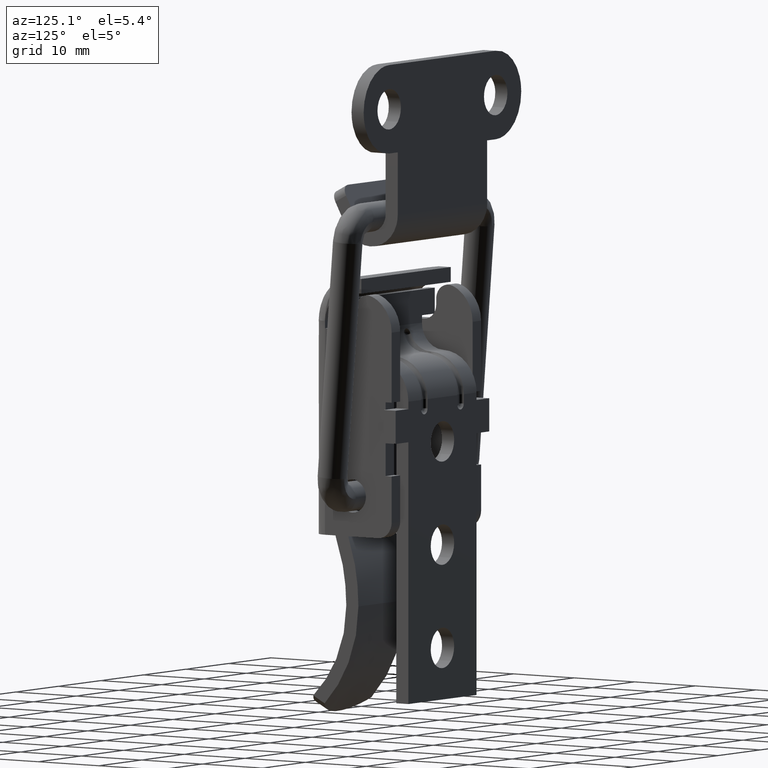
[diagram: clean part render]
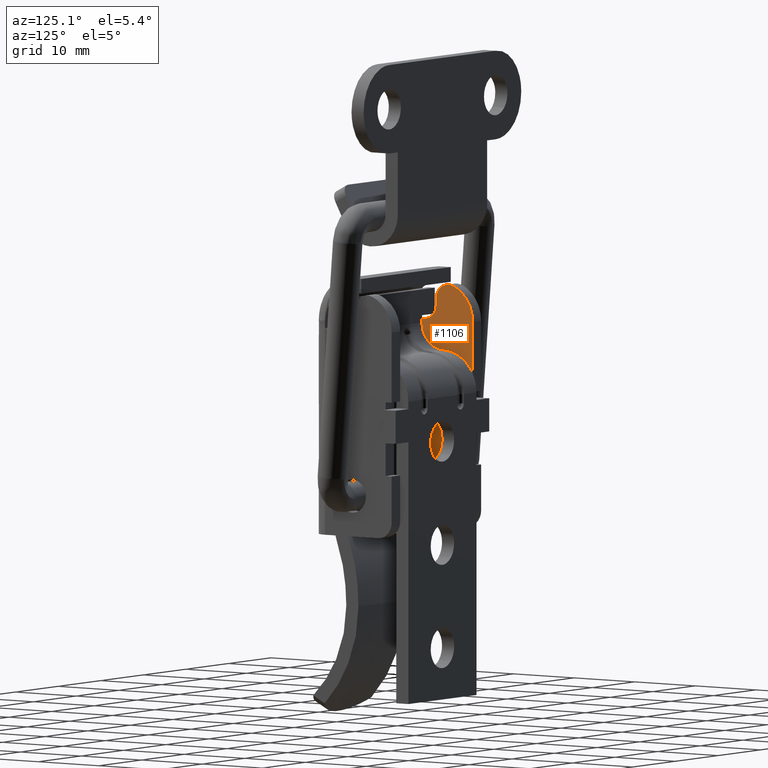
[diagram: same view with one face highlighted and labeled with its STEP entity id]
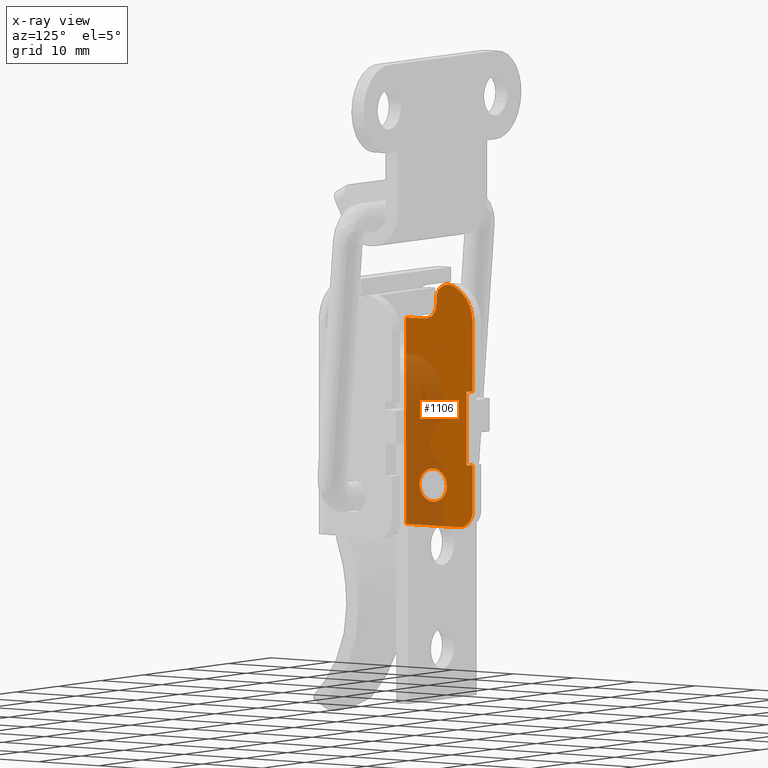
[diagram: x-ray of the same camera — body ghosted, the highlighted face saturated]
A machine part, auxiliary view. The second image highlights one B-rep face of the part: STEP entity #1106.
The next image is the same camera in x-ray: the body ghosted, the highlighted face saturated — about 36% of this face is hidden behind the body in this view.
In plain terms, the highlighted face is a freeform B-spline surface patch.
Its self-contained STEP definition (entity closure, byte-faithful):
#273=CARTESIAN_POINT('',(-8.500000000000000,0.0,2.250000000000000));
#274=VERTEX_POINT('',#273);
#275=CARTESIAN_POINT('',(-8.500000000011486,-1.612464491836882,1.569221721724918));
#276=VERTEX_POINT('',#275);
#277=CARTESIAN_POINT('',(-8.500000000000000,0.0,2.250000000000000));
#278=CARTESIAN_POINT('',(-8.500000000001199,-0.168530742970352,2.250012785977738));
#279=CARTESIAN_POINT('',(-8.500000000004008,-0.561810524420025,2.205694830792735));
#280=CARTESIAN_POINT('',(-8.500000000008020,-1.125771545482476,1.984002632662515));
#281=CARTESIAN_POINT('',(-8.500000000010466,-1.468837856950000,1.716881195124922));
#282=CARTESIAN_POINT('',(-8.500000000011486,-1.612464491836882,1.569221721724918));
#283=B_SPLINE_CURVE_WITH_KNOTS('',3,(#277,#278,#279,#280,#281,#282),.UNSPECIFIED.,.F.,.U.,(4,1,1,4),(0.000000014728166,0.505623028054706,1.179786753748042,1.797770626451644),.UNSPECIFIED.);
#284=EDGE_CURVE('',#274,#276,#283,.T.);
#344=CARTESIAN_POINT('',(-8.499999999995415,-1.658874303429257,-1.520078120054214));
#345=VERTEX_POINT('',#344);
#351=CARTESIAN_POINT('',(-8.500000000000000,0.0,-2.250000000000000));
#352=VERTEX_POINT('',#351);
#353=CARTESIAN_POINT('',(-8.499999999995415,-1.658874303429257,-1.520078120054214));
#354=CARTESIAN_POINT('',(-8.499999999995938,-1.462165498403645,-1.735222418705578));
#355=CARTESIAN_POINT('',(-8.499999999996998,-1.095221152361994,-2.004779563521480));
#356=CARTESIAN_POINT('',(-8.499999999998584,-0.505169069200119,-2.211284513505244));
#357=CARTESIAN_POINT('',(-8.499999999999519,-0.174876825502243,-2.250037285144152));
#358=CARTESIAN_POINT('',(-8.500000000000000,0.0,-2.250000000000000));
#359=B_SPLINE_CURVE_WITH_KNOTS('',3,(#353,#354,#355,#356,#357,#358),.UNSPECIFIED.,.F.,.U.,(4,1,1,4),(0.000000017815174,0.874394007066234,1.340736821353172,1.865373010030307),.UNSPECIFIED.);
#360=EDGE_CURVE('',#345,#352,#359,.T.);
#362=CARTESIAN_POINT('',(-8.500000000000000,2.249999999999630,0.000001289926931));
#363=VERTEX_POINT('',#362);
#364=CARTESIAN_POINT('',(-8.500000000000000,0.0,-2.250000000000000));
#365=CARTESIAN_POINT('',(-8.499999999999991,0.239320203715827,-2.250146372489394));
#366=CARTESIAN_POINT('',(-8.500000000000000,0.625785825574232,-2.187706349734474));
#367=CARTESIAN_POINT('',(-8.500000000000002,1.133082131296364,-1.962824331043440));
#368=CARTESIAN_POINT('',(-8.500000000000002,1.568419537428669,-1.648240248701334));
#369=CARTESIAN_POINT('',(-8.499999999999998,1.910752711810750,-1.231122239259737));
#370=CARTESIAN_POINT('',(-8.500000000000018,2.179603252565151,-0.662565674991767));
#371=CARTESIAN_POINT('',(-8.500000000000004,2.250200112503102,-0.257734897939028));
#372=CARTESIAN_POINT('',(-8.500000000000000,2.249999999999630,0.000001289926931));
#373=B_SPLINE_CURVE_WITH_KNOTS('',3,(#364,#365,#366,#367,#368,#369,#370,#371,#372),.UNSPECIFIED.,.F.,.U.,(4,1,1,1,1,1,4),(0.000000032367034,0.717915841835764,1.159724997902156,1.656742123114734,2.319427080565058,2.761239903347428,3.534381151795157),.UNSPECIFIED.);
#374=EDGE_CURVE('',#352,#363,#373,.T.);
#376=CARTESIAN_POINT('',(-8.500000000000000,2.249999999999630,0.000001289926931));
#377=CARTESIAN_POINT('',(-8.499999999999989,2.250011175382164,0.147254500591559));
#378=CARTESIAN_POINT('',(-8.500000000000021,2.215588763106982,0.497020912905061));
#379=CARTESIAN_POINT('',(-8.499999999999982,2.052441248964263,0.971266930876319));
#380=CARTESIAN_POINT('',(-8.500000000000011,1.755559616170968,1.440114618568769));
#381=CARTESIAN_POINT('',(-8.500000000000002,1.396588770611406,1.790361888739570));
#382=CARTESIAN_POINT('',(-8.500000000000004,0.936476293283055,2.066128536312633));
#383=CARTESIAN_POINT('',(-8.499999999999996,0.478605193132827,2.217392440809866));
#384=CARTESIAN_POINT('',(-8.500000000000004,0.147257710777164,2.250010183272829));
#385=CARTESIAN_POINT('',(-8.500000000000000,0.0,2.250000000000000));
#386=B_SPLINE_CURVE_WITH_KNOTS('',3,(#376,#377,#378,#379,#380,#381,#382,#383,#384,#385),.UNSPECIFIED.,.F.,.U.,(4,1,1,1,1,1,1,4),(0.000000034135996,0.441779218968554,1.049274105069932,1.491068358867785,2.098528761577470,2.540330813620773,3.092593088719886,3.534379697710593),.UNSPECIFIED.);
#387=EDGE_CURVE('',#363,#274,#386,.T.);
#406=CARTESIAN_POINT('',(-8.500000000000000,-2.249999999999630,-0.000001289926930));
#407=VERTEX_POINT('',#406);
#408=CARTESIAN_POINT('',(-8.500000000011486,-1.612464491836882,1.569221721724918));
#409=CARTESIAN_POINT('',(-8.500000000010068,-1.801900031612404,1.374895490819160));
#410=CARTESIAN_POINT('',(-8.500000000007701,-2.016694103785647,1.054105986228435));
#411=CARTESIAN_POINT('',(-8.500000000003732,-2.208914859600053,0.506461216774414));
#412=CARTESIAN_POINT('',(-8.500000000001439,-2.250067397245572,0.198990844480152));
#413=CARTESIAN_POINT('',(-8.500000000000000,-2.249999999999630,-0.000001289926930));
#414=B_SPLINE_CURVE_WITH_KNOTS('',3,(#408,#409,#410,#411,#412,#413),.UNSPECIFIED.,.F.,.U.,(4,1,1,4),(0.000000022545395,0.814039943308034,1.139644897918584,1.736610913918920),.UNSPECIFIED.);
#415=EDGE_CURVE('',#276,#407,#414,.T.);
#417=CARTESIAN_POINT('',(-8.500000000000000,-2.249999999999630,-0.000001289926930));
#418=CARTESIAN_POINT('',(-8.499999999999309,-2.250105067492378,-0.226023848704205));
#419=CARTESIAN_POINT('',(-8.499999999998233,-2.194504960243809,-0.591037772739342));
#420=CARTESIAN_POINT('',(-8.499999999996652,-1.979968512848016,-1.106935916758258));
#421=CARTESIAN_POINT('',(-8.499999999995847,-1.788115644250802,-1.379115485561044));
#422=CARTESIAN_POINT('',(-8.499999999995415,-1.658874303429257,-1.520078120054214));
#423=B_SPLINE_CURVE_WITH_KNOTS('',3,(#417,#418,#419,#420,#421,#422),.UNSPECIFIED.,.F.,.U.,(4,1,1,4),(0.000000018542156,0.678040340135482,1.095280631843212,1.669007196930369),.UNSPECIFIED.);
#424=EDGE_CURVE('',#407,#345,#423,.T.);
#970=CARTESIAN_POINT('',(-8.500000000000000,-5.049449978679779,28.967731618388392));
#971=CARTESIAN_POINT('',(-8.500000000000000,7.049450273722947,28.967731618388392));
#972=CARTESIAN_POINT('',(-8.500000000000000,-5.049449978679779,-7.139758136266584));
#973=CARTESIAN_POINT('',(-8.500000000000000,7.049450273722947,-7.139758136266584));
#974=B_SPLINE_SURFACE_WITH_KNOTS('',1,1,((#970,#972),(#971,#973)),.UNSPECIFIED.,.F.,.F.,.U.,(2,2),(2,2),(0.0,12.098900252402730),(0.0,36.107489754654971),.UNSPECIFIED.);
#975=CARTESIAN_POINT('',(-8.500000000000000,4.250000000000000,-5.500000000000000));
#976=VERTEX_POINT('',#975);
#977=CARTESIAN_POINT('',(-8.500000000000000,6.500000000000090,-3.250000000000000));
#978=VERTEX_POINT('',#977);
#979=CARTESIAN_POINT('',(-8.500000000000000,4.250000000000000,-5.500000000000000));
#980=CARTESIAN_POINT('',(-8.499999999999989,4.434078506243557,-5.500043589333320));
#981=CARTESIAN_POINT('',(-8.500000000000032,4.746980315580595,-5.461367242238381));
#982=CARTESIAN_POINT('',(-8.499999999999952,5.271164564370262,-5.281139318873774));
#983=CARTESIAN_POINT('',(-8.500000000000114,5.739967501662600,-4.976184558150214));
#984=CARTESIAN_POINT('',(-8.499999999999881,6.115418094989810,-4.540718090947925));
#985=CARTESIAN_POINT('',(-8.500000000000165,6.411991135299271,-3.986110199375530));
#986=CARTESIAN_POINT('',(-8.499999999999892,6.500287837977203,-3.544579153995494));
#987=CARTESIAN_POINT('',(-8.500000000000000,6.500000000000090,-3.250000000000000));
#988=B_SPLINE_CURVE_WITH_KNOTS('',3,(#979,#980,#981,#982,#983,#984,#985,#986,#987),.UNSPECIFIED.,.F.,.U.,(4,1,1,1,1,1,4),(0.000000033251026,0.552234690884730,0.938822452612543,1.656741781638267,2.208976946937666,2.650785335761975,3.534380424753132),.UNSPECIFIED.);
#989=EDGE_CURVE('',#976,#978,#988,.T.);
#990=ORIENTED_EDGE('',*,*,#989,.T.);
#991=CARTESIAN_POINT('',(-8.500000000000000,6.500000000000090,3.0));
#992=VERTEX_POINT('',#991);
#993=CARTESIAN_POINT('',(-8.500000000000000,6.500000000000090,3.0));
#994=CARTESIAN_POINT('',(-8.500000000000000,6.500000000000090,-3.250000000000000));
#995=QUASI_UNIFORM_CURVE('',1,(#993,#994),.UNSPECIFIED.,.F.,.U.);
#996=EDGE_CURVE('',#992,#978,#995,.T.);
#997=ORIENTED_EDGE('',*,*,#996,.F.);
#998=CARTESIAN_POINT('',(-8.500000000000000,5.500000000000090,3.0));
#999=VERTEX_POINT('',#998);
#1000=CARTESIAN_POINT('',(-8.500000000000000,5.500000000000090,3.0));
#1001=CARTESIAN_POINT('',(-8.500000000000000,6.500000000000090,3.0));
#1002=QUASI_UNIFORM_CURVE('',1,(#1000,#1001),.UNSPECIFIED.,.F.,.U.);
#1003=EDGE_CURVE('',#999,#992,#1002,.T.);
#1004=ORIENTED_EDGE('',*,*,#1003,.F.);
#1005=CARTESIAN_POINT('',(-8.500000000000000,5.500000000000090,13.0));
#1006=VERTEX_POINT('',#1005);
#1007=CARTESIAN_POINT('',(-8.500000000000000,5.500000000000090,13.0));
#1008=CARTESIAN_POINT('',(-8.500000000000000,5.500000000000090,3.0));
#1009=QUASI_UNIFORM_CURVE('',1,(#1007,#1008),.UNSPECIFIED.,.F.,.U.);
#1010=EDGE_CURVE('',#1006,#999,#1009,.T.);
#1011=ORIENTED_EDGE('',*,*,#1010,.F.);
#1012=CARTESIAN_POINT('',(-8.500000000000000,6.500000000000090,13.0));
#1013=VERTEX_POINT('',#1012);
#1014=CARTESIAN_POINT('',(-8.500000000000000,6.500000000000090,13.0));
#1015=CARTESIAN_POINT('',(-8.500000000000000,5.500000000000090,13.0));
#1016=QUASI_UNIFORM_CURVE('',1,(#1014,#1015),.UNSPECIFIED.,.F.,.U.);
#1017=EDGE_CURVE('',#1013,#1006,#1016,.T.);
#1018=ORIENTED_EDGE('',*,*,#1017,.F.);
#1019=CARTESIAN_POINT('',(-8.500000000000000,6.500000000000090,22.500000000000000));
#1020=VERTEX_POINT('',#1019);
#1021=CARTESIAN_POINT('',(-8.500000000000000,6.500000000000090,22.500000000000000));
#1022=CARTESIAN_POINT('',(-8.500000000000000,6.500000000000090,13.0));
#1023=QUASI_UNIFORM_CURVE('',1,(#1021,#1022),.UNSPECIFIED.,.F.,.U.);
#1024=EDGE_CURVE('',#1020,#1013,#1023,.T.);
#1025=ORIENTED_EDGE('',*,*,#1024,.F.);
#1026=CARTESIAN_POINT('',(-8.500000000000000,3.166666666666610,27.214045207910250));
#1027=VERTEX_POINT('',#1026);
#1028=CARTESIAN_POINT('',(-8.500000000000000,6.500000000000090,22.500000000000000));
#1029=CARTESIAN_POINT('',(-8.499999999999995,6.500101919833442,22.916741657953779));
#1030=CARTESIAN_POINT('',(-8.500000000000004,6.421385077816487,23.541779105784499));
#1031=CARTESIAN_POINT('',(-8.500000000000030,6.110284699499767,24.504537865496768));
#1032=CARTESIAN_POINT('',(-8.499999999999904,5.684718790819741,25.301591926510831));
#1033=CARTESIAN_POINT('',(-8.500000000000036,5.095568408249723,26.004855889026839));
#1034=CARTESIAN_POINT('',(-8.499999999999996,4.307073101916399,26.689415280963129));
#1035=CARTESIAN_POINT('',(-8.499999999999959,3.650369618265454,27.043334537477381));
#1036=CARTESIAN_POINT('',(-8.500000000000000,3.166666666666610,27.214045207910250));
#1037=B_SPLINE_CURVE_WITH_KNOTS('',3,(#1028,#1029,#1030,#1031,#1032,#1033,#1034,#1035,#1036),.UNSPECIFIED.,.F.,.U.,(4,1,1,1,1,1,4),(0.000000052773063,1.250194532123133,1.875302685405181,3.029351157674913,3.942925029411726,4.616115615784612,6.154820803455634),.UNSPECIFIED.);
#1038=EDGE_CURVE('',#1020,#1027,#1037,.T.);
#1039=ORIENTED_EDGE('',*,*,#1038,.T.);
#1040=CARTESIAN_POINT('',(-8.500000000000000,0.500000000000000,25.328427124746099));
#1041=VERTEX_POINT('',#1040);
#1042=CARTESIAN_POINT('',(-8.500000000000000,3.166666666666610,27.214045207910250));
#1043=CARTESIAN_POINT('',(-8.500000000000014,2.941530619760981,27.293831630045439));
#1044=CARTESIAN_POINT('',(-8.500000000000002,2.562227895174083,27.355032122758480));
#1045=CARTESIAN_POINT('',(-8.499999999999998,2.075632929949802,27.294841081906480));
#1046=CARTESIAN_POINT('',(-8.500000000000002,1.714233183109962,27.179281773585739));
#1047=CARTESIAN_POINT('',(-8.500000000000053,1.352257793881606,26.986901911500699));
#1048=CARTESIAN_POINT('',(-8.499999999999856,1.056229472311683,26.731146819482511));
#1049=CARTESIAN_POINT('',(-8.500000000000195,0.773353255493688,26.369919098471971));
#1050=CARTESIAN_POINT('',(-8.499999999999856,0.559882255443836,25.925475086491439));
#1051=CARTESIAN_POINT('',(-8.500000000000050,0.499920679758015,25.527456008050379));
#1052=CARTESIAN_POINT('',(-8.500000000000000,0.500000000000000,25.328427124746099));
#1053=B_SPLINE_CURVE_WITH_KNOTS('',3,(#1042,#1043,#1044,#1045,#1046,#1047,#1048,#1049,#1050,#1051,#1052),.UNSPECIFIED.,.F.,.U.,(4,1,1,1,1,1,1,1,4),(0.000000195608352,0.716490655947832,1.134457120227771,1.462864752349851,1.850961875713380,2.358438503980059,2.627137773563607,3.224226741635083,3.821301945282728),.UNSPECIFIED.);
#1054=EDGE_CURVE('',#1027,#1041,#1053,.T.);
#1055=ORIENTED_EDGE('',*,*,#1054,.T.);
#1056=CARTESIAN_POINT('',(-8.500000000000000,0.500000000000000,24.500000000000000));
#1057=VERTEX_POINT('',#1056);
#1058=CARTESIAN_POINT('',(-8.500000000000000,0.500000000000000,24.500000000000000));
#1059=CARTESIAN_POINT('',(-8.500000000000000,0.500000000000000,25.328427124746099));
#1060=QUASI_UNIFORM_CURVE('',1,(#1058,#1059),.UNSPECIFIED.,.F.,.U.);
#1061=EDGE_CURVE('',#1057,#1041,#1060,.T.);
#1062=ORIENTED_EDGE('',*,*,#1061,.F.);
#1063=CARTESIAN_POINT('',(-8.500000000000000,-1.499999999999914,22.500000000000000));
#1064=VERTEX_POINT('',#1063);
#1065=CARTESIAN_POINT('',(-8.500000000000000,-1.499999999999914,22.500000000000000));
#1066=CARTESIAN_POINT('',(-8.499999999999991,-1.270913447547516,22.499843810732710));
#1067=CARTESIAN_POINT('',(-8.500000000000007,-0.861932887106794,22.571059461482790));
#1068=CARTESIAN_POINT('',(-8.499999999999995,-0.378293001125159,22.822046028813830));
#1069=CARTESIAN_POINT('',(-8.500000000000011,-0.042182404920114,23.112037306321529));
#1070=CARTESIAN_POINT('',(-8.499999999999965,0.241142171296312,23.474909604419079));
#1071=CARTESIAN_POINT('',(-8.500000000000037,0.448873185346599,23.943684238969968));
#1072=CARTESIAN_POINT('',(-8.499999999999988,0.500054298949171,24.320011152940211));
#1073=CARTESIAN_POINT('',(-8.500000000000000,0.500000000000000,24.500000000000000));
#1074=B_SPLINE_CURVE_WITH_KNOTS('',3,(#1065,#1066,#1067,#1068,#1069,#1070,#1071,#1072,#1073),.UNSPECIFIED.,.F.,.U.,(4,1,1,1,1,1,4),(0.000000080940064,0.687236437397130,1.227235705970944,1.619915380090462,2.012622382625696,2.601697787950833,3.141671488671482),.UNSPECIFIED.);
#1075=EDGE_CURVE('',#1064,#1057,#1074,.T.);
#1076=ORIENTED_EDGE('',*,*,#1075,.F.);
#1077=CARTESIAN_POINT('',(-8.500000000000000,-4.499999999999915,22.500000000000000));
#1078=VERTEX_POINT('',#1077);
#1079=CARTESIAN_POINT('',(-8.500000000000000,-4.499999999999915,22.500000000000000));
#1080=CARTESIAN_POINT('',(-8.500000000000000,-1.499999999999914,22.500000000000000));
#1081=QUASI_UNIFORM_CURVE('',1,(#1079,#1080),.UNSPECIFIED.,.F.,.U.);
#1082=EDGE_CURVE('',#1078,#1064,#1081,.T.);
#1083=ORIENTED_EDGE('',*,*,#1082,.F.);
#1084=CARTESIAN_POINT('',(-8.500000000000000,-4.499999999999915,-5.500000000000000));
#1085=VERTEX_POINT('',#1084);
#1086=CARTESIAN_POINT('',(-8.500000000000000,-4.499999999999915,22.500000000000000));
#1087=CARTESIAN_POINT('',(-8.500000000000000,-4.499999999999915,-5.500000000000000));
#1088=QUASI_UNIFORM_CURVE('',1,(#1086,#1087),.UNSPECIFIED.,.F.,.U.);
#1089=EDGE_CURVE('',#1078,#1085,#1088,.T.);
#1090=ORIENTED_EDGE('',*,*,#1089,.T.);
#1091=CARTESIAN_POINT('',(-8.500000000000000,-4.499999999999915,-5.500000000000000));
#1092=CARTESIAN_POINT('',(-8.500000000000000,4.250000000000000,-5.500000000000000));
#1093=QUASI_UNIFORM_CURVE('',1,(#1091,#1092),.UNSPECIFIED.,.F.,.U.);
#1094=EDGE_CURVE('',#1085,#976,#1093,.T.);
#1095=ORIENTED_EDGE('',*,*,#1094,.T.);
#1096=EDGE_LOOP('',(#990,#997,#1004,#1011,#1018,#1025,#1039,#1055,#1062,#1076,#1083,#1090,#1095));
#1097=FACE_OUTER_BOUND('',#1096,.T.);
#1098=ORIENTED_EDGE('',*,*,#374,.F.);
#1099=ORIENTED_EDGE('',*,*,#360,.F.);
#1100=ORIENTED_EDGE('',*,*,#424,.F.);
#1101=ORIENTED_EDGE('',*,*,#415,.F.);
#1102=ORIENTED_EDGE('',*,*,#284,.F.);
#1103=ORIENTED_EDGE('',*,*,#387,.F.);
#1104=EDGE_LOOP('',(#1098,#1099,#1100,#1101,#1102,#1103));
#1105=FACE_BOUND('',#1104,.T.);
#1106=ADVANCED_FACE('',(#1097,#1105),#974,.F.);